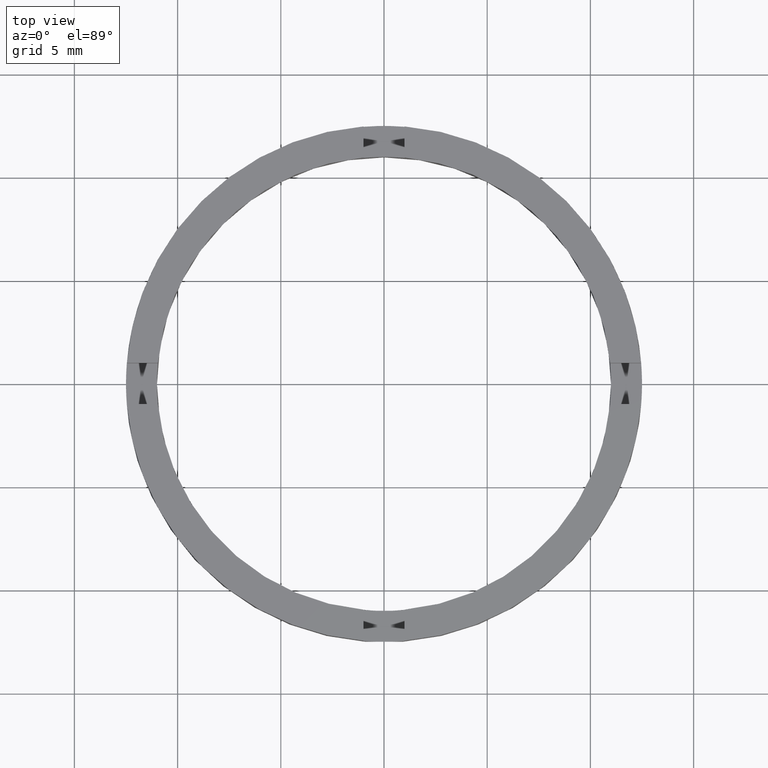
[diagram: clean part render]
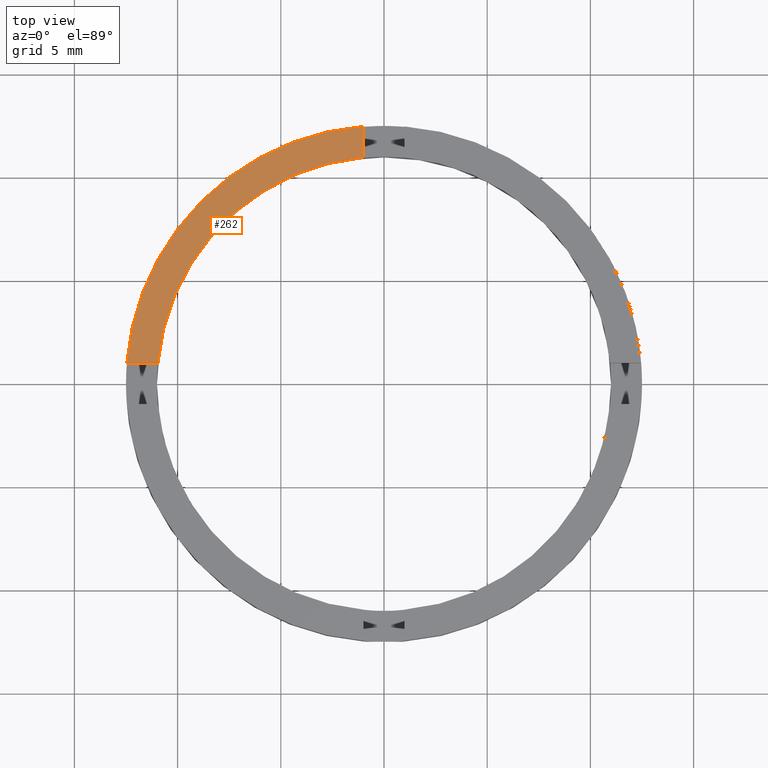
[diagram: same view with one face highlighted and labeled with its STEP entity id]
A machine part, top view. The second image highlights one B-rep face of the part: STEP entity #262.
In plain terms, the highlighted planar face has unit normal (0, 0, 1).
Its self-contained STEP definition (entity closure, byte-faithful):
#21 = VECTOR ( 'NONE', #69, 1000.000000000000000 ) ;
#25 = CARTESIAN_POINT ( 'NONE',  ( 0.000000000000000000, 0.000000000000000000, 2.500000000000000000 ) ) ;
#34 = LINE ( 'NONE', #558, #21 ) ;
#39 = VECTOR ( 'NONE', #258, 1000.000000000000000 ) ;
#69 = DIRECTION ( 'NONE',  ( -1.000000000000000000, -1.734723475976807341E-16, 0.000000000000000000 ) ) ;
#71 = AXIS2_PLACEMENT_3D ( 'NONE', #306, #341, #645 ) ;
#86 = CARTESIAN_POINT ( 'NONE',  ( -1.000000000000024425, 10.95445115010331882, 2.500000000000000000 ) ) ;
#130 = FACE_OUTER_BOUND ( 'NONE', #500, .T. ) ;
#159 = ORIENTED_EDGE ( 'NONE', *, *, #608, .F. ) ;
#243 = DIRECTION ( 'NONE',  ( 0.000000000000000000, 0.000000000000000000, 1.000000000000000000 ) ) ;
#246 = ORIENTED_EDGE ( 'NONE', *, *, #754, .F. ) ;
#258 = DIRECTION ( 'NONE',  ( -0.000000000000000000, -1.000000000000000000, -0.000000000000000000 ) ) ;
#259 = VERTEX_POINT ( 'NONE', #443 ) ;
#262 = ADVANCED_FACE ( 'NONE', ( #130 ), #760, .T. ) ;
#295 = DIRECTION ( 'NONE',  ( 0.000000000000000000, 0.000000000000000000, 1.000000000000000000 ) ) ;
#306 = CARTESIAN_POINT ( 'NONE',  ( 0.000000000000000000, 0.000000000000000000, 2.500000000000000000 ) ) ;
#341 = DIRECTION ( 'NONE',  ( 0.000000000000000000, 0.000000000000000000, 1.000000000000000000 ) ) ;
#401 = CIRCLE ( 'NONE', #469, 11.00000000000000000 ) ;
#403 = EDGE_CURVE ( 'NONE', #444, #259, #401, .T. ) ;
#419 = VERTEX_POINT ( 'NONE', #782 ) ;
#425 = CARTESIAN_POINT ( 'NONE',  ( 0.000000000000000000, 0.000000000000000000, 2.500000000000000000 ) ) ;
#443 = CARTESIAN_POINT ( 'NONE',  ( -10.95445115010332415, 0.9999999999999781286, 2.500000000000000000 ) ) ;
#444 = VERTEX_POINT ( 'NONE', #86 ) ;
#450 = ORIENTED_EDGE ( 'NONE', *, *, #403, .F. ) ;
#469 = AXIS2_PLACEMENT_3D ( 'NONE', #425, #295, #497 ) ;
#497 = DIRECTION ( 'NONE',  ( 1.000000000000000000, 0.000000000000000000, 0.000000000000000000 ) ) ;
#500 = EDGE_LOOP ( 'NONE', ( #159, #702, #246, #450 ) ) ;
#552 = CARTESIAN_POINT ( 'NONE',  ( -1.000000000000024425, 2.500000000000002220, 2.500000000000000000 ) ) ;
#558 = CARTESIAN_POINT ( 'NONE',  ( -2.500000000000186073, 0.9999999999999796829, 2.500000000000000000 ) ) ;
#567 = CIRCLE ( 'NONE', #71, 12.50000000000000000 ) ;
#569 = LINE ( 'NONE', #552, #39 ) ;
#602 = CARTESIAN_POINT ( 'NONE',  ( -12.45993579437711496, 0.9999999999999779066, 2.500000000000000000 ) ) ;
#608 = EDGE_CURVE ( 'NONE', #419, #444, #569, .T. ) ;
#612 = AXIS2_PLACEMENT_3D ( 'NONE', #25, #243, #719 ) ;
#622 = EDGE_CURVE ( 'NONE', #419, #649, #567, .T. ) ;
#645 = DIRECTION ( 'NONE',  ( 1.000000000000000000, 0.000000000000000000, 0.000000000000000000 ) ) ;
#649 = VERTEX_POINT ( 'NONE', #602 ) ;
#702 = ORIENTED_EDGE ( 'NONE', *, *, #622, .T. ) ;
#719 = DIRECTION ( 'NONE',  ( 1.000000000000000000, 0.000000000000000000, -0.000000000000000000 ) ) ;
#754 = EDGE_CURVE ( 'NONE', #259, #649, #34, .T. ) ;
#760 = PLANE ( 'NONE',  #612 ) ;
#782 = CARTESIAN_POINT ( 'NONE',  ( -1.000000000000024425, 12.45993579437711141, 2.500000000000000000 ) ) ;